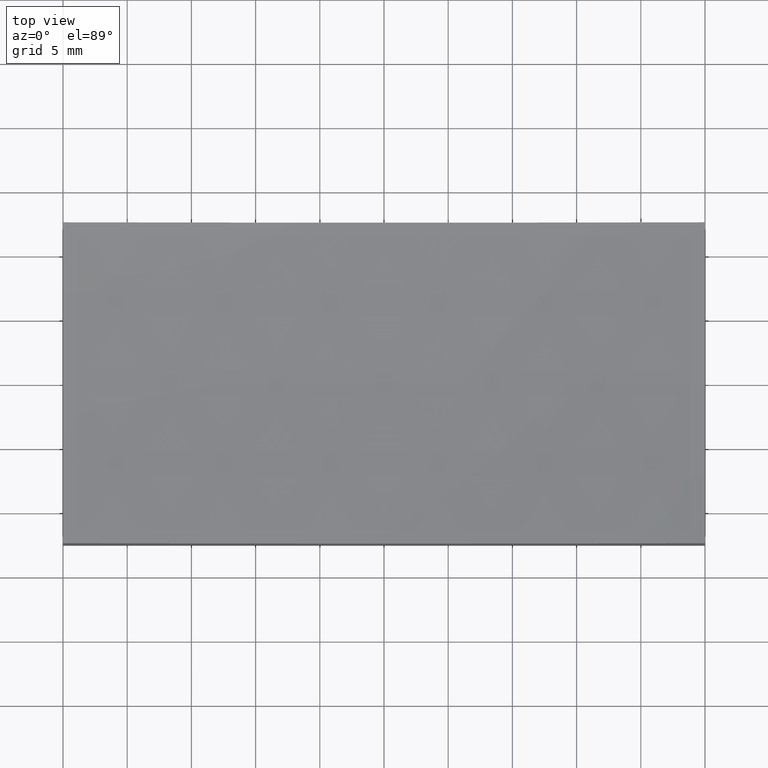
[diagram: clean part render]
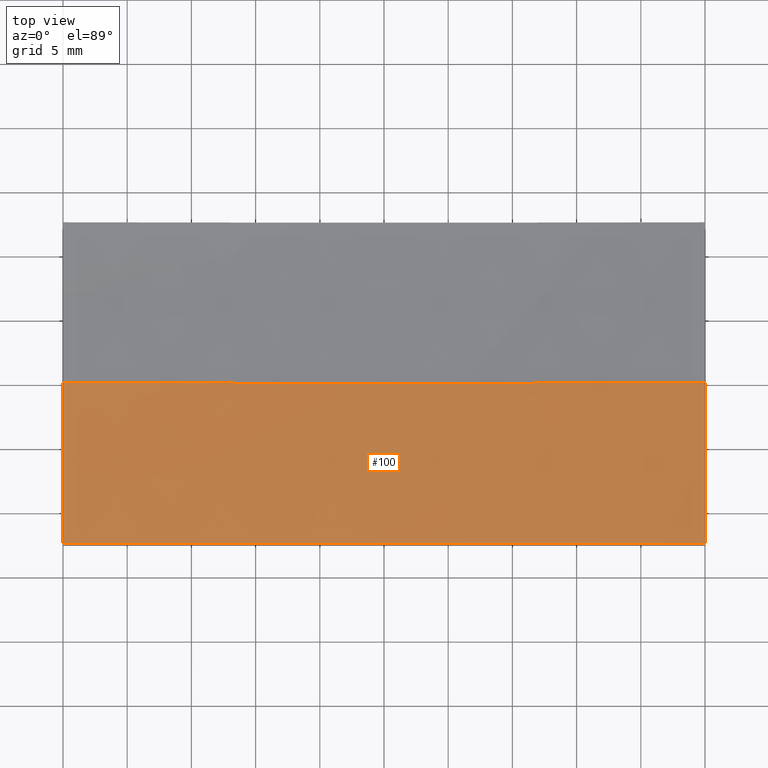
[diagram: same view with one face highlighted and labeled with its STEP entity id]
A machine part, top view. The second image highlights one B-rep face of the part: STEP entity #100.
In plain terms, the highlighted spherical surface has radius 200 mm.
Its self-contained STEP definition (entity closure, byte-faithful):
#4 = CIRCLE ( 'NONE', #210, 198.4313483298443259 ) ;
#8 = VERTEX_POINT ( 'NONE', #206 ) ;
#15 = CARTESIAN_POINT ( 'NONE',  ( -25.00000000000000000, -3.061616997868383043E-15, 10.56865167015569362 ) ) ;
#16 = AXIS2_PLACEMENT_3D ( 'NONE', #111, #157, #32 ) ;
#26 = CIRCLE ( 'NONE', #180, 200.0000000000000000 ) ;
#30 = ORIENTED_EDGE ( 'NONE', *, *, #192, .T. ) ;
#31 = DIRECTION ( 'NONE',  ( 1.000000000000000000, 1.224646799147353207E-16, 0.000000000000000000 ) ) ;
#32 = DIRECTION ( 'NONE',  ( 5.329070518200749816E-15, 0.000000000000000000, 1.000000000000000000 ) ) ;
#35 = DIRECTION ( 'NONE',  ( -1.000000000000000000, -1.387778780781445676E-16, 0.000000000000000000 ) ) ;
#38 = ORIENTED_EDGE ( 'NONE', *, *, #155, .T. ) ;
#41 = ORIENTED_EDGE ( 'NONE', *, *, #110, .T. ) ;
#45 = AXIS2_PLACEMENT_3D ( 'NONE', #94, #117, #135 ) ;
#51 = DIRECTION ( 'NONE',  ( -2.797499069501050082E-16, -1.000000000000000000, 0.000000000000000000 ) ) ;
#53 = CARTESIAN_POINT ( 'NONE',  ( 25.00000000000000000, -6.938893903907228378E-15, 209.0000000000000284 ) ) ;
#66 = AXIS2_PLACEMENT_3D ( 'NONE', #191, #230, #196 ) ;
#67 = ORIENTED_EDGE ( 'NONE', *, *, #72, .F. ) ;
#71 = DIRECTION ( 'NONE',  ( 1.224646799147353207E-16, -1.000000000000000000, -2.389495266532727716E-35 ) ) ;
#72 = EDGE_CURVE ( 'NONE', #107, #126, #26, .T. ) ;
#86 = VERTEX_POINT ( 'NONE', #133 ) ;
#93 = CIRCLE ( 'NONE', #45, 200.0000000000000000 ) ;
#94 = CARTESIAN_POINT ( 'NONE',  ( 0.000000000000000000, 0.000000000000000000, 209.0000000000000284 ) ) ;
#95 = DIRECTION ( 'NONE',  ( -1.398749534750525041E-16, 1.000000000000000000, 0.000000000000000000 ) ) ;
#100 = ADVANCED_FACE ( 'NONE', ( #172 ), #194, .F. ) ;
#105 = CIRCLE ( 'NONE', #141, 198.4313483298443259 ) ;
#107 = VERTEX_POINT ( 'NONE', #15 ) ;
#110 = EDGE_CURVE ( 'NONE', #8, #126, #93, .T. ) ;
#111 = CARTESIAN_POINT ( 'NONE',  ( 0.000000000000000000, -12.49999999999999645, 209.0000000000000284 ) ) ;
#113 = CARTESIAN_POINT ( 'NONE',  ( -25.00000000000000000, -3.469446951953614189E-15, 209.0000000000000284 ) ) ;
#117 = DIRECTION ( 'NONE',  ( 0.000000000000000000, 1.000000000000000000, -0.000000000000000000 ) ) ;
#122 = CARTESIAN_POINT ( 'NONE',  ( 0.000000000000000000, 0.000000000000000000, 209.0000000000000284 ) ) ;
#126 = VERTEX_POINT ( 'NONE', #251 ) ;
#127 = CIRCLE ( 'NONE', #16, 199.6089927833914430 ) ;
#130 = EDGE_LOOP ( 'NONE', ( #67, #30, #38, #247, #41 ) ) ;
#133 = CARTESIAN_POINT ( 'NONE',  ( -24.99999999999998934, -12.49999999999999645, 10.96275602806423599 ) ) ;
#135 = DIRECTION ( 'NONE',  ( 0.000000000000000000, 0.000000000000000000, 1.000000000000000000 ) ) ;
#141 = AXIS2_PLACEMENT_3D ( 'NONE', #113, #35, #95 ) ;
#155 = EDGE_CURVE ( 'NONE', #86, #235, #127, .T. ) ;
#157 = DIRECTION ( 'NONE',  ( -0.000000000000000000, -1.000000000000000000, -0.000000000000000000 ) ) ;
#167 = EDGE_CURVE ( 'NONE', #235, #8, #4, .T. ) ;
#172 = FACE_OUTER_BOUND ( 'NONE', #130, .T. ) ;
#176 = CARTESIAN_POINT ( 'NONE',  ( 24.99999999999999645, -12.50000000000000000, 10.96275602806423599 ) ) ;
#180 = AXIS2_PLACEMENT_3D ( 'NONE', #122, #71, #31 ) ;
#191 = CARTESIAN_POINT ( 'NONE',  ( 0.000000000000000000, 0.000000000000000000, 209.0000000000000284 ) ) ;
#192 = EDGE_CURVE ( 'NONE', #107, #86, #105, .T. ) ;
#194 = SPHERICAL_SURFACE ( 'NONE', #66, 200.0000000000000000 ) ;
#196 = DIRECTION ( 'NONE',  ( 1.000000000000000000, 0.000000000000000000, 0.000000000000000000 ) ) ;
#206 = CARTESIAN_POINT ( 'NONE',  ( 25.00000000000000000, 0.000000000000000000, 10.56865167015569362 ) ) ;
#207 = DIRECTION ( 'NONE',  ( 1.000000000000000000, -2.775557561562891351E-16, -0.000000000000000000 ) ) ;
#210 = AXIS2_PLACEMENT_3D ( 'NONE', #53, #207, #51 ) ;
#230 = DIRECTION ( 'NONE',  ( 0.000000000000000000, -1.000000000000000000, -0.000000000000000000 ) ) ;
#235 = VERTEX_POINT ( 'NONE', #176 ) ;
#247 = ORIENTED_EDGE ( 'NONE', *, *, #167, .T. ) ;
#251 = CARTESIAN_POINT ( 'NONE',  ( 1.220744457234245953E-14, 0.000000000000000000, 9.000000000000007105 ) ) ;